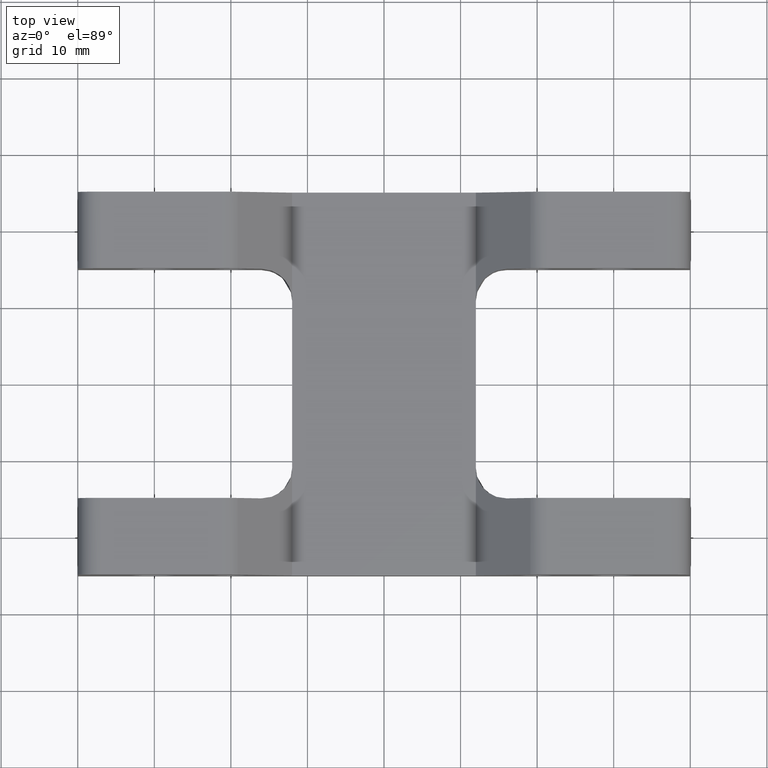
[diagram: clean part render]
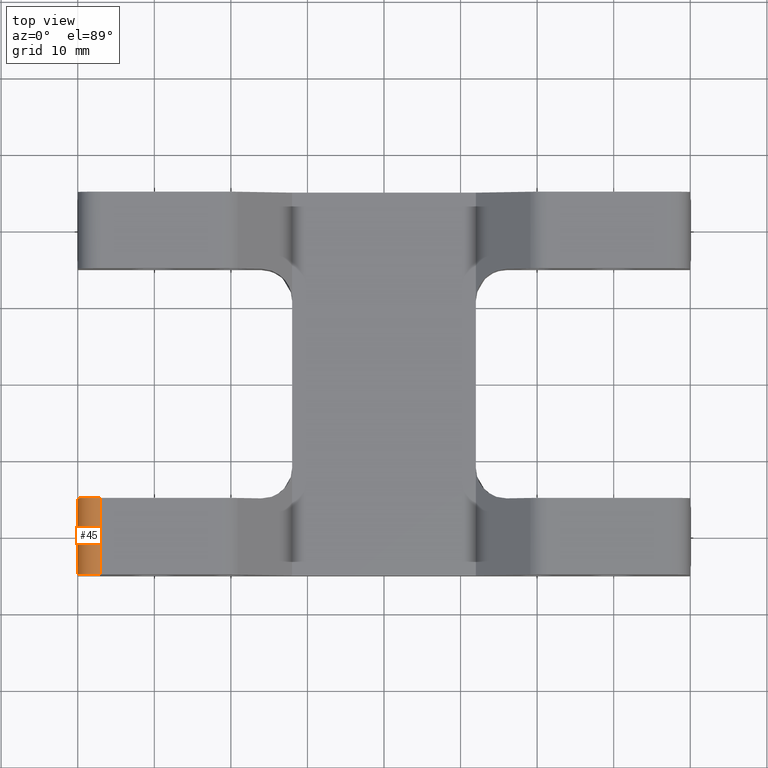
[diagram: same view with one face highlighted and labeled with its STEP entity id]
A machine part, top view. The second image highlights one B-rep face of the part: STEP entity #45.
In plain terms, the highlighted face is a freeform B-spline surface patch.
Its self-contained STEP definition (entity closure, byte-faithful):
#45=ADVANCED_FACE('',(#127),#1132,.T.);
#127=FACE_OUTER_BOUND('',#197,.T.);
#197=EDGE_LOOP('',(#405,#406,#407,#408));
#405=ORIENTED_EDGE('',*,*,#703,.T.);
#406=ORIENTED_EDGE('',*,*,#705,.T.);
#407=ORIENTED_EDGE('',*,*,#623,.T.);
#408=ORIENTED_EDGE('',*,*,#706,.T.);
#623=EDGE_CURVE('',#1001,#1000,#916,.T.);
#703=EDGE_CURVE('',#1076,#1009,#965,.T.);
#705=EDGE_CURVE('',#1009,#1001,#836,.T.);
#706=EDGE_CURVE('',#1000,#1076,#837,.T.);
#836=(
BOUNDED_CURVE()
B_SPLINE_CURVE(2,(#1965,#1966,#1967),.UNSPECIFIED.,.F.,.F.)
B_SPLINE_CURVE_WITH_KNOTS((3,3),(-0.785398163397448,0.785398163397449),
 .UNSPECIFIED.)
CURVE()
GEOMETRIC_REPRESENTATION_ITEM()
RATIONAL_B_SPLINE_CURVE((1.,0.707106781186548,1.))
REPRESENTATION_ITEM('')
);
#837=(
BOUNDED_CURVE()
B_SPLINE_CURVE(2,(#1968,#1969,#1970),.UNSPECIFIED.,.F.,.F.)
B_SPLINE_CURVE_WITH_KNOTS((3,3),(-0.785398163397449,0.785398163397448),
 .UNSPECIFIED.)
CURVE()
GEOMETRIC_REPRESENTATION_ITEM()
RATIONAL_B_SPLINE_CURVE((1.,0.707106781186548,1.))
REPRESENTATION_ITEM('')
);
#916=B_SPLINE_CURVE_WITH_KNOTS('',1,(#1751,#1752),.UNSPECIFIED.,.F.,.F.,
(2,2),(2.75,3.75),.UNSPECIFIED.);
#965=B_SPLINE_CURVE_WITH_KNOTS('',1,(#1961,#1962),.UNSPECIFIED.,.F.,.F.,
(2,2),(-3.75,-2.75),.UNSPECIFIED.);
#1000=VERTEX_POINT('',#1622);
#1001=VERTEX_POINT('',#1623);
#1009=VERTEX_POINT('',#1631);
#1076=VERTEX_POINT('',#1698);
#1132=(
BOUNDED_SURFACE()
B_SPLINE_SURFACE(1,2,((#1394,#1395,#1396),(#1397,#1398,#1399)),
 .UNSPECIFIED.,.F.,.F.,.F.)
B_SPLINE_SURFACE_WITH_KNOTS((2,2),(3,3),(9.16666666666667,12.5),(-0.785398163397448,
0.785398163397449),.UNSPECIFIED.)
GEOMETRIC_REPRESENTATION_ITEM()
RATIONAL_B_SPLINE_SURFACE(((1.,0.707106781186548,1.),(1.,0.707106781186548,
1.)))
REPRESENTATION_ITEM('')
SURFACE()
);
#1394=CARTESIAN_POINT('',(-36.9999999881972,-24.9999999973046,15.));
#1395=CARTESIAN_POINT('',(-39.9999999881972,-24.9999999973046,15.));
#1396=CARTESIAN_POINT('',(-39.9999999881972,-24.9999999973046,12.));
#1397=CARTESIAN_POINT('',(-36.9999999881972,-14.9999999973046,15.));
#1398=CARTESIAN_POINT('',(-39.9999999881972,-14.9999999973046,15.));
#1399=CARTESIAN_POINT('',(-39.9999999881972,-14.9999999973046,12.));
#1622=CARTESIAN_POINT('',(-39.9999999881972,-24.9999999973046,12.));
#1623=CARTESIAN_POINT('',(-39.9999999881972,-14.9999999973046,12.));
#1631=CARTESIAN_POINT('',(-36.9999999881972,-14.9999999973046,15.));
#1698=CARTESIAN_POINT('',(-36.9999999881972,-24.9999999973046,15.));
#1751=CARTESIAN_POINT('',(-39.9999999881972,-14.9999999973046,12.));
#1752=CARTESIAN_POINT('',(-39.9999999881972,-24.9999999973046,12.));
#1961=CARTESIAN_POINT('',(-36.9999999881972,-24.9999999973046,15.));
#1962=CARTESIAN_POINT('',(-36.9999999881972,-14.9999999973046,15.));
#1965=CARTESIAN_POINT('',(-36.9999999881972,-14.9999999973046,15.));
#1966=CARTESIAN_POINT('',(-39.9999999881972,-14.9999999973046,15.));
#1967=CARTESIAN_POINT('',(-39.9999999881972,-14.9999999973046,12.));
#1968=CARTESIAN_POINT('',(-39.9999999881972,-24.9999999973046,12.));
#1969=CARTESIAN_POINT('',(-39.9999999881972,-24.9999999973046,15.));
#1970=CARTESIAN_POINT('',(-36.9999999881972,-24.9999999973046,15.));